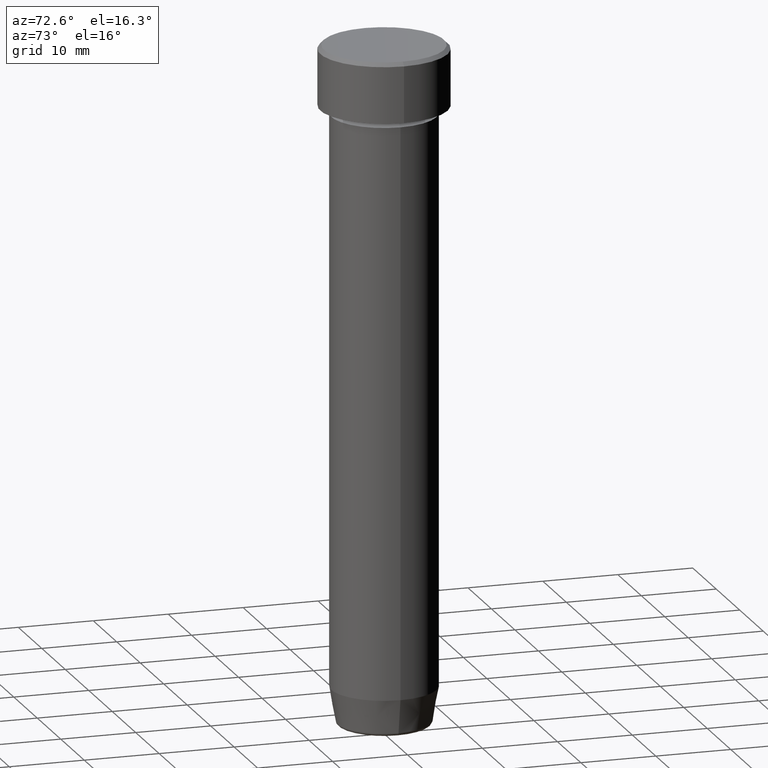
[diagram: clean part render]
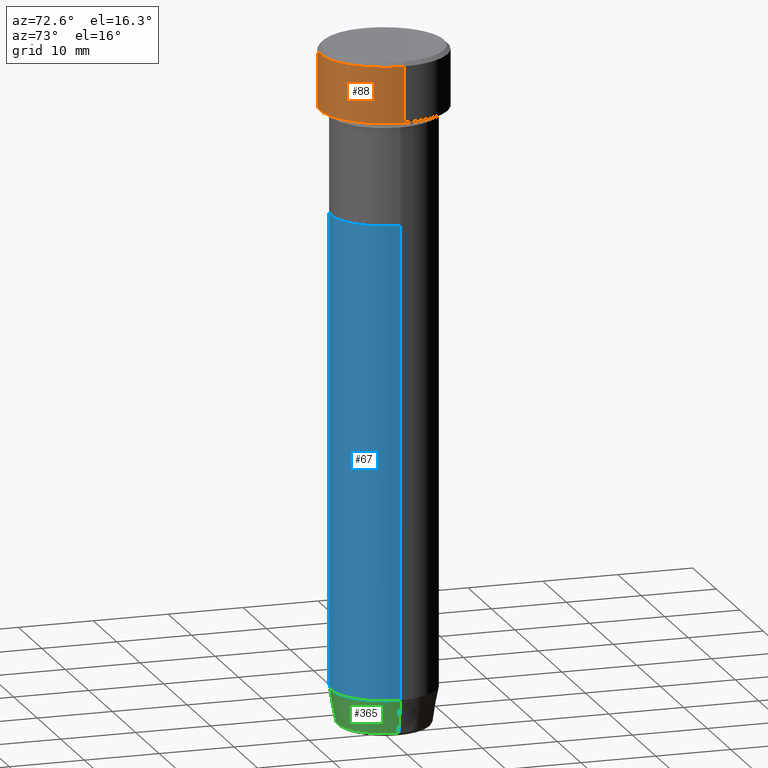
[diagram: same view with three faces highlighted in distinct colors, each labeled with its STEP entity id]
A machine part, auxiliary view with three faces highlighted in distinct colors.
Their STEP definitions:

[orange] entity #88 — the highlighted cylindrical surface (partial cylindrical patch) has radius 8.5 mm, axis along (-0, -0, 1).
#30 = DIRECTION ( 'NONE',  ( 1.000000000000000000, 0.000000000000000000, 0.000000000000000000 ) ) ;
#32 = DIRECTION ( 'NONE',  ( -0.000000000000000000, -0.000000000000000000, 1.000000000000000000 ) ) ;
#73 = EDGE_CURVE ( 'NONE', #289, #112, #157, .T. ) ;
#78 = LINE ( 'NONE', #441, #183 ) ;
#80 = ORIENTED_EDGE ( 'NONE', *, *, #351, .T. ) ;
#88 = ADVANCED_FACE ( 'NONE', ( #307 ), #479, .T. ) ;
#95 = EDGE_CURVE ( 'NONE', #319, #289, #78, .T. ) ;
#111 = DIRECTION ( 'NONE',  ( 1.000000000000000000, 0.000000000000000000, 0.000000000000000000 ) ) ;
#112 = VERTEX_POINT ( 'NONE', #560 ) ;
#149 = LINE ( 'NONE', #281, #480 ) ;
#157 = CIRCLE ( 'NONE', #450, 8.500000000000000000 ) ;
#165 = VERTEX_POINT ( 'NONE', #362 ) ;
#183 = VECTOR ( 'NONE', #32, 1000.000000000000000 ) ;
#191 = DIRECTION ( 'NONE',  ( -0.000000000000000000, -0.000000000000000000, 1.000000000000000000 ) ) ;
#219 = CARTESIAN_POINT ( 'NONE',  ( 0.000000000000000000, 0.000000000000000000, 0.000000000000000000 ) ) ;
#221 = DIRECTION ( 'NONE',  ( 0.000000000000000000, 0.000000000000000000, -1.000000000000000000 ) ) ;
#241 = CARTESIAN_POINT ( 'NONE',  ( 8.500000000000000000, 0.000000000000000000, -0.4999999999999987232 ) ) ;
#259 = CARTESIAN_POINT ( 'NONE',  ( 0.000000000000000000, 0.000000000000000000, -0.4999999999999987232 ) ) ;
#264 = DIRECTION ( 'NONE',  ( 1.000000000000000000, 0.000000000000000000, 0.000000000000000000 ) ) ;
#281 = CARTESIAN_POINT ( 'NONE',  ( -8.500000000000000000, 1.040949779275250140E-15, 0.000000000000000000 ) ) ;
#282 = AXIS2_PLACEMENT_3D ( 'NONE', #336, #515, #111 ) ;
#289 = VERTEX_POINT ( 'NONE', #241 ) ;
#307 = FACE_OUTER_BOUND ( 'NONE', #472, .T. ) ;
#319 = VERTEX_POINT ( 'NONE', #332 ) ;
#332 = CARTESIAN_POINT ( 'NONE',  ( 8.500000000000000000, 0.000000000000000000, -8.000000000000000000 ) ) ;
#335 = ORIENTED_EDGE ( 'NONE', *, *, #95, .T. ) ;
#336 = CARTESIAN_POINT ( 'NONE',  ( 0.000000000000000000, 0.000000000000000000, -8.000000000000000000 ) ) ;
#351 = EDGE_CURVE ( 'NONE', #165, #319, #393, .T. ) ;
#362 = CARTESIAN_POINT ( 'NONE',  ( -8.500000000000000000, 1.040949779275250140E-15, -8.000000000000000000 ) ) ;
#393 = CIRCLE ( 'NONE', #282, 8.500000000000000000 ) ;
#427 = ORIENTED_EDGE ( 'NONE', *, *, #73, .T. ) ;
#441 = CARTESIAN_POINT ( 'NONE',  ( 8.500000000000000000, 0.000000000000000000, 0.000000000000000000 ) ) ;
#450 = AXIS2_PLACEMENT_3D ( 'NONE', #259, #221, #30 ) ;
#453 = EDGE_CURVE ( 'NONE', #165, #112, #149, .T. ) ;
#472 = EDGE_LOOP ( 'NONE', ( #558, #80, #335, #427 ) ) ;
#479 = CYLINDRICAL_SURFACE ( 'NONE', #482, 8.500000000000000000 ) ;
#480 = VECTOR ( 'NONE', #191, 1000.000000000000000 ) ;
#482 = AXIS2_PLACEMENT_3D ( 'NONE', #219, #487, #264 ) ;
#487 = DIRECTION ( 'NONE',  ( -0.000000000000000000, -0.000000000000000000, 1.000000000000000000 ) ) ;
#515 = DIRECTION ( 'NONE',  ( -0.000000000000000000, -0.000000000000000000, 1.000000000000000000 ) ) ;
#558 = ORIENTED_EDGE ( 'NONE', *, *, #453, .F. ) ;
#560 = CARTESIAN_POINT ( 'NONE',  ( -8.500000000000000000, 1.040949779275250140E-15, -0.4999999999999987232 ) ) ;

[blue] entity #67 — the highlighted cylindrical surface (partial cylindrical patch) has radius 7 mm, axis along (-0, -0, 1).
#1 = EDGE_CURVE ( 'NONE', #329, #152, #398, .T. ) ;
#28 = DIRECTION ( 'NONE',  ( 1.000000000000000000, 0.000000000000000000, 0.000000000000000000 ) ) ;
#57 = EDGE_CURVE ( 'NONE', #285, #287, #550, .T. ) ;
#63 = CARTESIAN_POINT ( 'NONE',  ( -6.999999999999999112, 8.572527594031472204E-16, -84.99999999999998579 ) ) ;
#67 = ADVANCED_FACE ( 'NONE', ( #345 ), #128, .T. ) ;
#122 = DIRECTION ( 'NONE',  ( 1.000000000000000000, 0.000000000000000000, 0.000000000000000000 ) ) ;
#128 = CYLINDRICAL_SURFACE ( 'NONE', #432, 6.999999999999999112 ) ;
#152 = VERTEX_POINT ( 'NONE', #185 ) ;
#159 = EDGE_LOOP ( 'NONE', ( #383, #555, #337, #163 ) ) ;
#163 = ORIENTED_EDGE ( 'NONE', *, *, #1, .F. ) ;
#185 = CARTESIAN_POINT ( 'NONE',  ( 6.999999999999999112, 0.000000000000000000, -22.00000000000000000 ) ) ;
#213 = LINE ( 'NONE', #344, #596 ) ;
#236 = CARTESIAN_POINT ( 'NONE',  ( 6.999999999999999112, 0.000000000000000000, -84.99999999999998579 ) ) ;
#252 = DIRECTION ( 'NONE',  ( 1.000000000000000000, 0.000000000000000000, 0.000000000000000000 ) ) ;
#253 = AXIS2_PLACEMENT_3D ( 'NONE', #443, #305, #252 ) ;
#255 = LINE ( 'NONE', #304, #375 ) ;
#285 = VERTEX_POINT ( 'NONE', #63 ) ;
#287 = VERTEX_POINT ( 'NONE', #236 ) ;
#304 = CARTESIAN_POINT ( 'NONE',  ( -6.999999999999999112, 8.572527594031472204E-16, 0.000000000000000000 ) ) ;
#305 = DIRECTION ( 'NONE',  ( -0.000000000000000000, -0.000000000000000000, 1.000000000000000000 ) ) ;
#329 = VERTEX_POINT ( 'NONE', #381 ) ;
#337 = ORIENTED_EDGE ( 'NONE', *, *, #505, .T. ) ;
#344 = CARTESIAN_POINT ( 'NONE',  ( 6.999999999999999112, 0.000000000000000000, 0.000000000000000000 ) ) ;
#345 = FACE_OUTER_BOUND ( 'NONE', #159, .T. ) ;
#347 = DIRECTION ( 'NONE',  ( -0.000000000000000000, -0.000000000000000000, 1.000000000000000000 ) ) ;
#356 = CARTESIAN_POINT ( 'NONE',  ( 0.000000000000000000, 0.000000000000000000, 0.000000000000000000 ) ) ;
#375 = VECTOR ( 'NONE', #486, 1000.000000000000000 ) ;
#381 = CARTESIAN_POINT ( 'NONE',  ( -6.999999999999999112, 8.572527594031472204E-16, -22.00000000000000000 ) ) ;
#383 = ORIENTED_EDGE ( 'NONE', *, *, #544, .F. ) ;
#388 = DIRECTION ( 'NONE',  ( -0.000000000000000000, -0.000000000000000000, 1.000000000000000000 ) ) ;
#398 = CIRCLE ( 'NONE', #454, 6.999999999999999112 ) ;
#432 = AXIS2_PLACEMENT_3D ( 'NONE', #356, #528, #122 ) ;
#443 = CARTESIAN_POINT ( 'NONE',  ( 0.000000000000000000, 0.000000000000000000, -84.99999999999998579 ) ) ;
#454 = AXIS2_PLACEMENT_3D ( 'NONE', #584, #347, #28 ) ;
#486 = DIRECTION ( 'NONE',  ( -0.000000000000000000, -0.000000000000000000, 1.000000000000000000 ) ) ;
#505 = EDGE_CURVE ( 'NONE', #287, #152, #213, .T. ) ;
#528 = DIRECTION ( 'NONE',  ( -0.000000000000000000, -0.000000000000000000, 1.000000000000000000 ) ) ;
#544 = EDGE_CURVE ( 'NONE', #285, #329, #255, .T. ) ;
#550 = CIRCLE ( 'NONE', #253, 6.999999999999999112 ) ;
#555 = ORIENTED_EDGE ( 'NONE', *, *, #57, .T. ) ;
#584 = CARTESIAN_POINT ( 'NONE',  ( 0.000000000000000000, 0.000000000000000000, -22.00000000000000000 ) ) ;
#596 = VECTOR ( 'NONE', #388, 1000.000000000000000 ) ;

[green] entity #365 — the highlighted conical surface has half-angle 10 deg.
#6 = AXIS2_PLACEMENT_3D ( 'NONE', #166, #589, #526 ) ;
#8 = DIRECTION ( 'NONE',  ( 0.1736481776669304145, 0.000000000000000000, 0.9848077530122080203 ) ) ;
#39 = CARTESIAN_POINT ( 'NONE',  ( 6.191219157375138948, 0.000000000000000000, -89.58682408883345261 ) ) ;
#56 = DIRECTION ( 'NONE',  ( 1.000000000000000000, 0.000000000000000000, 0.000000000000000000 ) ) ;
#57 = EDGE_CURVE ( 'NONE', #285, #287, #550, .T. ) ;
#60 = VERTEX_POINT ( 'NONE', #39 ) ;
#63 = CARTESIAN_POINT ( 'NONE',  ( -6.999999999999999112, 8.572527594031472204E-16, -84.99999999999998579 ) ) ;
#68 = CONICAL_SURFACE ( 'NONE', #100, 6.118365096457672792, 0.1745329251994330311 ) ;
#100 = AXIS2_PLACEMENT_3D ( 'NONE', #198, #107, #56 ) ;
#101 = EDGE_CURVE ( 'NONE', #331, #285, #233, .T. ) ;
#107 = DIRECTION ( 'NONE',  ( -0.000000000000000000, -0.000000000000000000, 1.000000000000000000 ) ) ;
#108 = CIRCLE ( 'NONE', #6, 6.191219157375138948 ) ;
#155 = EDGE_CURVE ( 'NONE', #60, #287, #445, .T. ) ;
#166 = CARTESIAN_POINT ( 'NONE',  ( 0.000000000000000000, 0.000000000000000000, -89.58682408883345261 ) ) ;
#182 = CARTESIAN_POINT ( 'NONE',  ( -6.118365096457672792, 7.492836231391776623E-16, -90.00000000000000000 ) ) ;
#198 = CARTESIAN_POINT ( 'NONE',  ( 0.000000000000000000, 0.000000000000000000, -90.00000000000000000 ) ) ;
#203 = ORIENTED_EDGE ( 'NONE', *, *, #503, .T. ) ;
#233 = LINE ( 'NONE', #182, #512 ) ;
#236 = CARTESIAN_POINT ( 'NONE',  ( 6.999999999999999112, 0.000000000000000000, -84.99999999999998579 ) ) ;
#252 = DIRECTION ( 'NONE',  ( 1.000000000000000000, 0.000000000000000000, 0.000000000000000000 ) ) ;
#253 = AXIS2_PLACEMENT_3D ( 'NONE', #443, #305, #252 ) ;
#285 = VERTEX_POINT ( 'NONE', #63 ) ;
#287 = VERTEX_POINT ( 'NONE', #236 ) ;
#293 = VECTOR ( 'NONE', #8, 1000.000000000000227 ) ;
#305 = DIRECTION ( 'NONE',  ( -0.000000000000000000, -0.000000000000000000, 1.000000000000000000 ) ) ;
#331 = VERTEX_POINT ( 'NONE', #507 ) ;
#365 = ADVANCED_FACE ( 'NONE', ( #428 ), #68, .T. ) ;
#377 = ORIENTED_EDGE ( 'NONE', *, *, #155, .T. ) ;
#428 = FACE_OUTER_BOUND ( 'NONE', #517, .T. ) ;
#443 = CARTESIAN_POINT ( 'NONE',  ( 0.000000000000000000, 0.000000000000000000, -84.99999999999998579 ) ) ;
#445 = LINE ( 'NONE', #493, #293 ) ;
#456 = ORIENTED_EDGE ( 'NONE', *, *, #57, .F. ) ;
#493 = CARTESIAN_POINT ( 'NONE',  ( 6.118365096457672792, 0.000000000000000000, -90.00000000000000000 ) ) ;
#496 = DIRECTION ( 'NONE',  ( -0.1736481776669304145, 2.126576849575772531E-17, 0.9848077530122080203 ) ) ;
#503 = EDGE_CURVE ( 'NONE', #331, #60, #108, .T. ) ;
#507 = CARTESIAN_POINT ( 'NONE',  ( -6.191219157375138948, 8.077292158965355434E-16, -89.58682408883345261 ) ) ;
#508 = ORIENTED_EDGE ( 'NONE', *, *, #101, .F. ) ;
#512 = VECTOR ( 'NONE', #496, 1000.000000000000227 ) ;
#517 = EDGE_LOOP ( 'NONE', ( #508, #203, #377, #456 ) ) ;
#526 = DIRECTION ( 'NONE',  ( -1.000000000000000000, 0.000000000000000000, 0.000000000000000000 ) ) ;
#550 = CIRCLE ( 'NONE', #253, 6.999999999999999112 ) ;
#589 = DIRECTION ( 'NONE',  ( -0.000000000000000000, -0.000000000000000000, 1.000000000000000000 ) ) ;